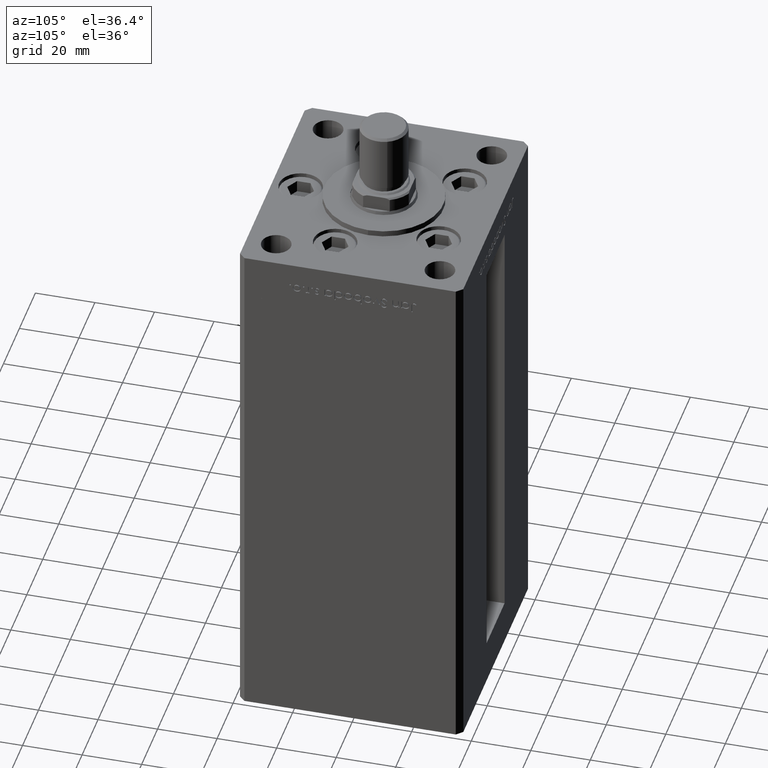
[diagram: clean part render]
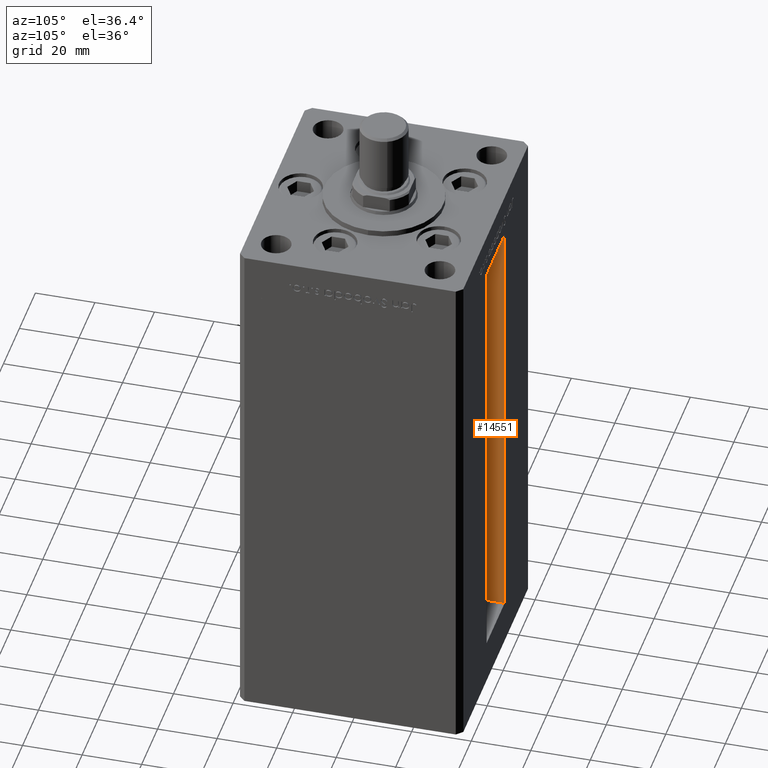
[diagram: same view with one face highlighted and labeled with its STEP entity id]
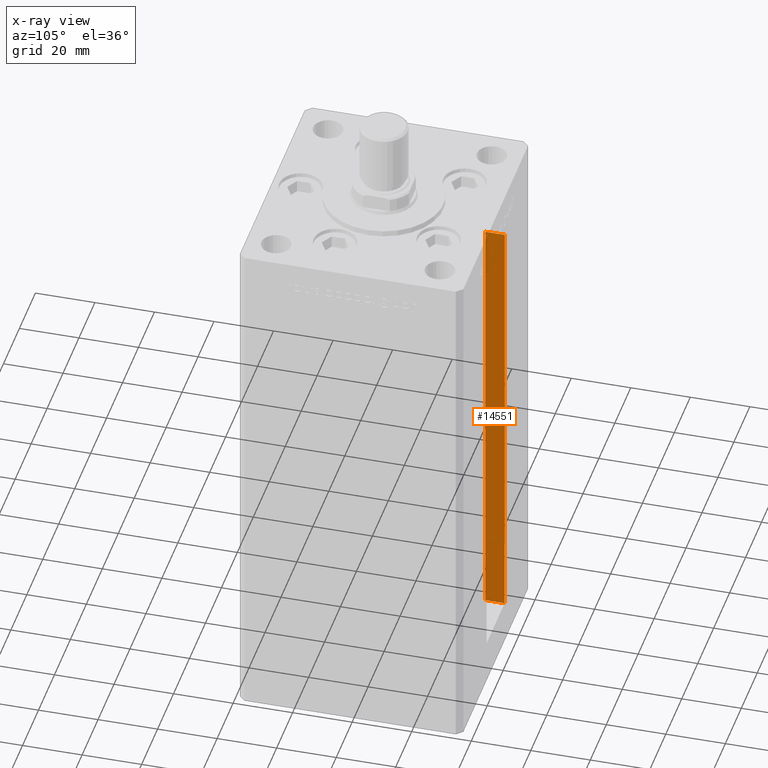
[diagram: x-ray of the same camera — body ghosted, the highlighted face saturated]
A machine part, auxiliary view. The second image highlights one B-rep face of the part: STEP entity #14551.
The next image is the same camera in x-ray: the body ghosted, the highlighted face saturated — about 6% of this face is hidden behind the body in this view.
In plain terms, the highlighted planar face has unit normal (-1, 0, 0).
Its self-contained STEP definition (entity closure, byte-faithful):
#268 = LINE ( 'NONE', #28379, #18571 ) ;
#1992 = ORIENTED_EDGE ( 'NONE', *, *, #12526, .F. ) ;
#3335 = VERTEX_POINT ( 'NONE', #15811 ) ;
#3628 = CARTESIAN_POINT ( 'NONE',  ( -11.25000000000000000, 30.99999999999999289, 148.5000000000000000 ) ) ;
#4924 = CARTESIAN_POINT ( 'NONE',  ( -11.25000000000000000, 30.99999999999999289, 0.000000000000000000 ) ) ;
#5842 = DIRECTION ( 'NONE',  ( 0.000000000000000000, 1.000000000000000000, 0.000000000000000000 ) ) ;
#9420 = DIRECTION ( 'NONE',  ( -1.000000000000000000, 0.000000000000000000, 0.000000000000000000 ) ) ;
#10151 = AXIS2_PLACEMENT_3D ( 'NONE', #4924, #9420, #14190 ) ;
#12440 = EDGE_LOOP ( 'NONE', ( #1992, #28939, #25904, #23029 ) ) ;
#12469 = DIRECTION ( 'NONE',  ( -0.000000000000000000, -0.000000000000000000, 1.000000000000000000 ) ) ;
#12526 = EDGE_CURVE ( 'NONE', #3335, #47173, #268, .T. ) ;
#13411 = PLANE ( 'NONE',  #10151 ) ;
#13820 = VECTOR ( 'NONE', #5842, 1000.000000000000000 ) ;
#14007 = EDGE_CURVE ( 'NONE', #25368, #3335, #22008, .T. ) ;
#14190 = DIRECTION ( 'NONE',  ( 0.000000000000000000, 0.000000000000000000, 1.000000000000000000 ) ) ;
#14253 = VERTEX_POINT ( 'NONE', #44774 ) ;
#14551 = ADVANCED_FACE ( 'NONE', ( #25349 ), #13411, .F. ) ;
#15210 = EDGE_CURVE ( 'NONE', #25368, #14253, #49740, .T. ) ;
#15244 = VECTOR ( 'NONE', #38059, 1000.000000000000000 ) ;
#15811 = CARTESIAN_POINT ( 'NONE',  ( -11.25000000000000000, 30.99999999999999289, 0.000000000000000000 ) ) ;
#17661 = CARTESIAN_POINT ( 'NONE',  ( -11.25000000000000000, 37.50000000000000000, 0.000000000000000000 ) ) ;
#17788 = LINE ( 'NONE', #33961, #13820 ) ;
#18571 = VECTOR ( 'NONE', #12469, 1000.000000000000000 ) ;
#22008 = LINE ( 'NONE', #50902, #35577 ) ;
#23029 = ORIENTED_EDGE ( 'NONE', *, *, #32161, .F. ) ;
#25349 = FACE_OUTER_BOUND ( 'NONE', #12440, .T. ) ;
#25368 = VERTEX_POINT ( 'NONE', #32962 ) ;
#25904 = ORIENTED_EDGE ( 'NONE', *, *, #15210, .T. ) ;
#28379 = CARTESIAN_POINT ( 'NONE',  ( -11.25000000000000000, 30.99999999999999289, 0.000000000000000000 ) ) ;
#28939 = ORIENTED_EDGE ( 'NONE', *, *, #14007, .F. ) ;
#32161 = EDGE_CURVE ( 'NONE', #47173, #14253, #17788, .T. ) ;
#32962 = CARTESIAN_POINT ( 'NONE',  ( -11.25000000000000000, 37.50000000000000000, 0.000000000000000000 ) ) ;
#33961 = CARTESIAN_POINT ( 'NONE',  ( -11.25000000000000000, 0.000000000000000000, 148.5000000000000000 ) ) ;
#35577 = VECTOR ( 'NONE', #38183, 1000.000000000000000 ) ;
#38059 = DIRECTION ( 'NONE',  ( -0.000000000000000000, -0.000000000000000000, 1.000000000000000000 ) ) ;
#38183 = DIRECTION ( 'NONE',  ( -0.000000000000000000, -1.000000000000000000, -0.000000000000000000 ) ) ;
#44774 = CARTESIAN_POINT ( 'NONE',  ( -11.25000000000000000, 37.50000000000000000, 148.5000000000000000 ) ) ;
#47173 = VERTEX_POINT ( 'NONE', #3628 ) ;
#49740 = LINE ( 'NONE', #17661, #15244 ) ;
#50902 = CARTESIAN_POINT ( 'NONE',  ( -11.25000000000000000, 30.99999999999999289, 0.000000000000000000 ) ) ;